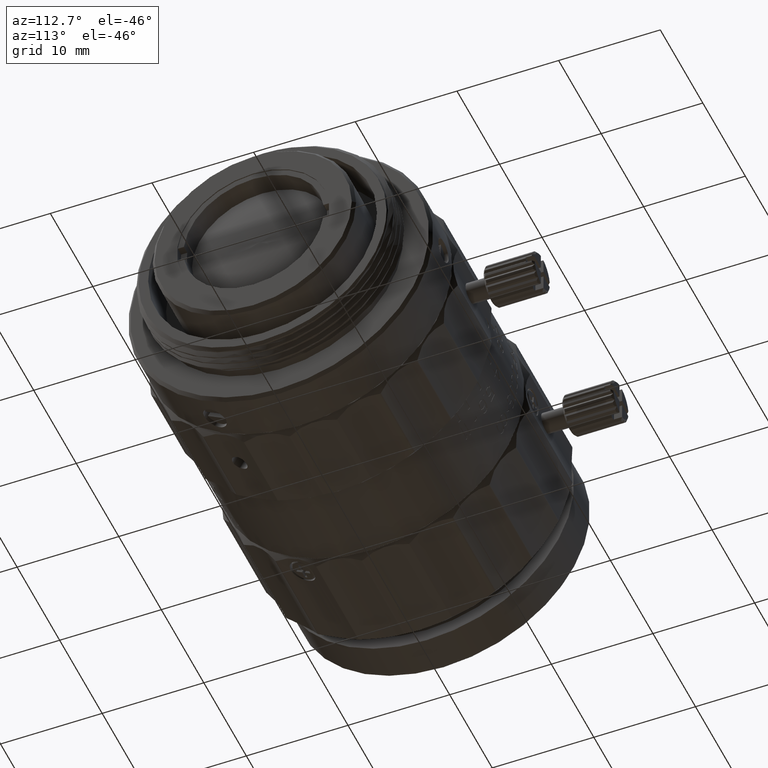
[diagram: clean part render]
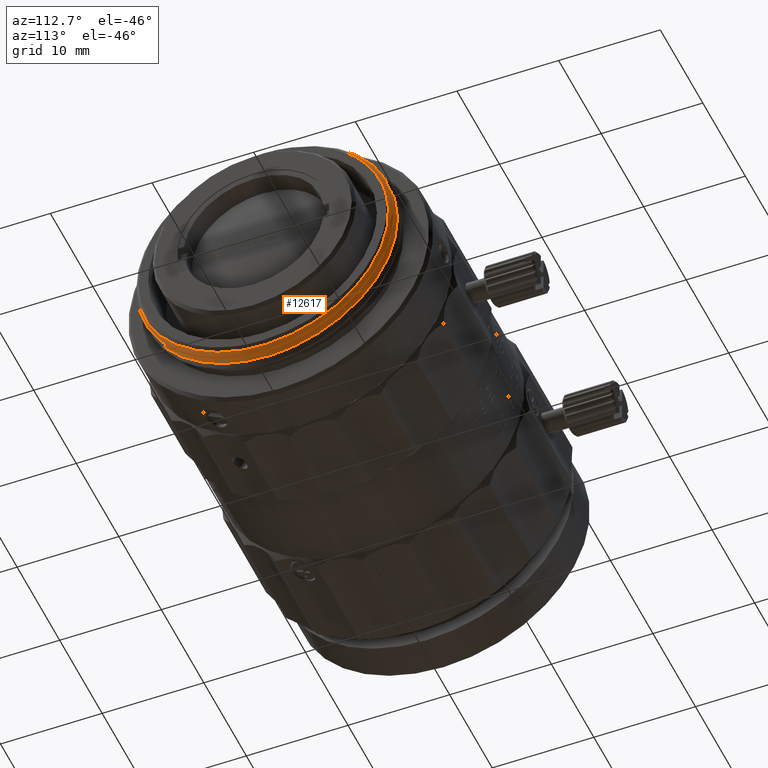
[diagram: same view with one face highlighted and labeled with its STEP entity id]
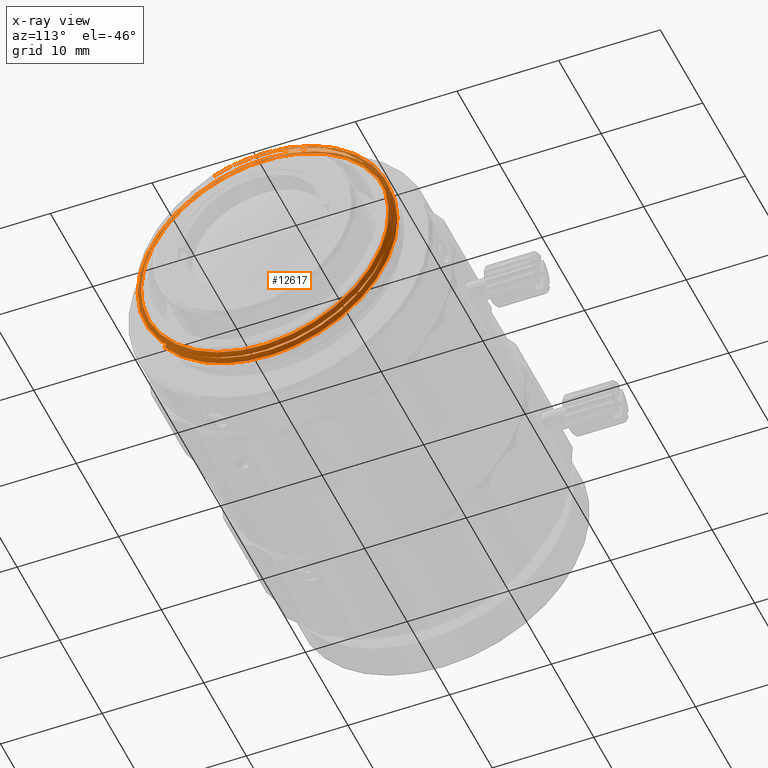
[diagram: x-ray of the same camera — body ghosted, the highlighted face saturated]
A machine part, auxiliary view. The second image highlights one B-rep face of the part: STEP entity #12617.
The next image is the same camera in x-ray: the body ghosted, the highlighted face saturated — about 0% of this face is hidden behind the body in this view.
In plain terms, the highlighted face is a freeform B-spline surface patch.
Its self-contained STEP definition (entity closure, byte-faithful):
#129 = FACE_OUTER_BOUND ( 'NONE', #24247, .T. ) ;
#374 = CARTESIAN_POINT ( 'NONE',  ( 3.499920121065671630, 10.67834939959904439, 6.874715535972438119 ) ) ;
#514 = CARTESIAN_POINT ( 'NONE',  ( 3.594074004484999918, 0.6258875992885000183, 12.99518045017999945 ) ) ;
#871 = CARTESIAN_POINT ( 'NONE',  ( 2.551181842513587927, 10.09816540872513890, -7.747081107326232896 ) ) ;
#911 = CARTESIAN_POINT ( 'NONE',  ( 3.305675875592999358, -8.838412986952999262, -9.059239745680001121 ) ) ;
#1294 = CARTESIAN_POINT ( 'NONE',  ( 3.083650623562999904, -7.261076405747001417, 10.36649112897999991 ) ) ;
#1448 = ORIENTED_EDGE ( 'NONE', *, *, #9508, .F. ) ;
#1623 = ORIENTED_EDGE ( 'NONE', *, *, #77343, .T. ) ;
#1675 = CARTESIAN_POINT ( 'NONE',  ( 3.006059134725999282, 8.908692348276000317, 8.739393632916998556 ) ) ;
#2070 = CARTESIAN_POINT ( 'NONE',  ( 2.728410220314000156, 10.22528464778000235, -7.458614114651001437 ) ) ;
#2256 = ORIENTED_EDGE ( 'NONE', *, *, #23987, .T. ) ;
#2456 = CARTESIAN_POINT ( 'NONE',  ( 2.817220321126999938, 12.62299066924000002, 0.9205843300913999494 ) ) ;
#2719 = CARTESIAN_POINT ( 'NONE',  ( 2.914980005793117002, -7.747048309159103141, 10.09816528434425642 ) ) ;
#2856 = CARTESIAN_POINT ( 'NONE',  ( 3.894160142847000738, 0.6003628963610001534, 12.46521609147999854 ) ) ;
#3105 = VERTEX_POINT ( 'NONE', #60230 ) ;
#3241 = CARTESIAN_POINT ( 'NONE',  ( 3.849755092441000226, 4.855521360994998759, 11.49633087462999903 ) ) ;
#3490 = CARTESIAN_POINT ( 'NONE',  ( 2.832365805679381232, -5.481869355772847566E-07, 12.69994713462105551 ) ) ;
#3862 = CARTESIAN_POINT ( 'NONE',  ( 2.848841635790761995, -1.662475917197266728, 12.61785663759387788 ) ) ;
#4270 = EDGE_CURVE ( 'NONE', #41549, #13470, #61631, .T. ) ;
#4386 = CARTESIAN_POINT ( 'NONE',  ( 3.272489437161999692, -12.07050792000999806, 3.169327844188000398 ) ) ;
#4870 = CARTESIAN_POINT ( 'NONE',  ( 2.628381507527000949, 10.36817057748999815, -7.562839185038000345 ) ) ;
#4921 = CARTESIAN_POINT ( 'NONE',  ( 3.424087818356309043, -5.125281698516999107, -11.42907328469000205 ) ) ;
#5337 = CARTESIAN_POINT ( 'NONE',  ( 2.766167935663720101, 6.396154381621151686, 11.09766435917640237 ) ) ;
#5637 = CARTESIAN_POINT ( 'NONE',  ( 3.016808349205999384, -12.95190103295000128, -1.230626257699999559 ) ) ;
#5999 = CARTESIAN_POINT ( 'NONE',  ( 2.493286327985411610, 5.627925405597366648, -11.41483656382798273 ) ) ;
#6037 = CARTESIAN_POINT ( 'NONE',  ( 3.250052213211999774, -5.251191849731999817, -11.70984543143999979 ) ) ;
#6272 = CARTESIAN_POINT ( 'NONE',  ( 3.229226628278662581, 7.406294098501877302E-07, -12.70002112693937768 ) ) ;
#6418 = CARTESIAN_POINT ( 'NONE',  ( 2.528352794739999965, 10.51105650720000106, -7.667064255420998897 ) ) ;
#6470 = CARTESIAN_POINT ( 'NONE',  ( 3.903434925210822026, -2.850854877072126481, 12.06798329000042713 ) ) ;
#6776 = VERTEX_POINT ( 'NONE', #37277 ) ;
#6804 = CARTESIAN_POINT ( 'NONE',  ( 2.994840522750999767, 1.162578224045000219, 12.60300681463999872 ) ) ;
#7209 = CARTESIAN_POINT ( 'NONE',  ( 3.768111134616000335, -6.488769004407001439, 10.86812582633000090 ) ) ;
#7587 = CARTESIAN_POINT ( 'NONE',  ( 2.872843983507998633, 11.99810628118999922, -3.433255854654999606 ) ) ;
#7889 = CARTESIAN_POINT ( 'NONE',  ( 3.820201304255182340, -0.9064769629970980125, 12.37952081774112223 ) ) ;
#7964 = CARTESIAN_POINT ( 'NONE',  ( 2.950435472344999699, 5.430821293696001639, 11.43212792856999904 ) ) ;
#8357 = CARTESIAN_POINT ( 'NONE',  ( 3.738507767678000526, -3.833956824848999467, 12.24727524740000284 ) ) ;
#9199 = CARTESIAN_POINT ( 'NONE',  ( 3.599346555447423768, 7.811275569978685773, 9.943187870218276103 ) ) ;
#9380 = CARTESIAN_POINT ( 'NONE',  ( 3.014187560796663945, -12.61790235569561247, 1.662481394232477205 ) ) ;
#9508 = EDGE_CURVE ( 'NONE', #61630, #23092, #20789, .T. ) ;
#10356 = CARTESIAN_POINT ( 'NONE',  ( 3.499920121065671630, 10.67834939959904439, 6.874715535972438119 ) ) ;
#11105 = CARTESIAN_POINT ( 'NONE',  ( 2.501557115775149498, 6.364807100371785431, -11.02162101021754559 ) ) ;
#11140 = CARTESIAN_POINT ( 'NONE',  ( 3.028026961182000321, -10.53152036429000127, 7.333660388116000739 ) ) ;
#11191 = CARTESIAN_POINT ( 'NONE',  ( 3.734923171198315295, 11.17788142564999987, 5.652184372775997723 ) ) ;
#11225 = CARTESIAN_POINT ( 'NONE',  ( 2.700028828037409401, 11.09761621215907468, 6.396089811305079920 ) ) ;
#11572 = CARTESIAN_POINT ( 'NONE',  ( 3.868138322416315056, 0.6025761866696999203, 12.51117020054000228 ) ) ;
#11742 = CARTESIAN_POINT ( 'NONE',  ( 3.096865998190906133, -11.09770758432696347, -6.396188551896021757 ) ) ;
#11759 = CARTESIAN_POINT ( 'NONE',  ( 3.274268466349609774, 4.454732122564948327, -11.94741837330285072 ) ) ;
#11910 = CARTESIAN_POINT ( 'NONE',  ( 2.806001709150999890, 9.161197099238000519, 8.987099842366001567 ) ) ;
#12137 = CARTESIAN_POINT ( 'NONE',  ( 3.113401959414153541, -10.15572149977386296, -7.804854521194688921 ) ) ;
#12160 = CARTESIAN_POINT ( 'NONE',  ( 3.420891496060697534, 12.73239548779208796, -0.6720906469325046428 ) ) ;
#12312 = CARTESIAN_POINT ( 'NONE',  ( 3.505263903672999337, 8.879032341570001208, 9.509416148463001761 ) ) ;
#12526 = CARTESIAN_POINT ( 'NONE',  ( 3.146473881860642141, -7.805107183148515482, -10.15601459116854777 ) ) ;
#12617 = ADVANCED_FACE ( 'NONE', ( #129 ), #36558, .F. ) ;
#12647 = CARTESIAN_POINT ( 'NONE',  ( 2.435470190763899812, 7.533926701922852099E-07, -12.69993773890490729 ) ) ;
#12685 = CARTESIAN_POINT ( 'NONE',  ( 2.583976457121000436, 7.130270709967000187, -10.67027309046999939 ) ) ;
#13069 = CARTESIAN_POINT ( 'NONE',  ( 3.472077465242000116, 12.48111423161000211, -2.986182020111999957 ) ) ;
#13302 = CARTESIAN_POINT ( 'NONE',  ( 3.047258114520589700, -12.70048416394289248, -1.662449368423239981 ) ) ;
#13456 = CARTESIAN_POINT ( 'NONE',  ( 3.216865774780999665, -12.59976812997999751, -1.197168312392999923 ) ) ;
#13470 = VERTEX_POINT ( 'NONE', #19418 ) ;
#13835 = CARTESIAN_POINT ( 'NONE',  ( 2.639600119501999576, 2.978805887559999643, -12.30098013393999778 ) ) ;
#14227 = CARTESIAN_POINT ( 'NONE',  ( 2.695223781883000047, -1.418563793616999691, -12.39876558491000047 ) ) ;
#14240 = ORIENTED_EDGE ( 'NONE', *, *, #26249, .T. ) ;
#14615 = CARTESIAN_POINT ( 'NONE',  ( 3.583324790004000615, 7.382036819756999435, -10.06217336481000402 ) ) ;
#14850 = ORIENTED_EDGE ( 'NONE', *, *, #54860, .F. ) ;
#16031 = CARTESIAN_POINT ( 'NONE',  ( 2.425364221640802675, -1.007692532243900541, -12.70017201971780985 ) ) ;
#16669 = CARTESIAN_POINT ( 'NONE',  ( 2.713607011859314522, 2.948008867842999869, -12.17380382838999608 ) ) ;
#16969 = CARTESIAN_POINT ( 'NONE',  ( 2.575994205882810917, 11.41477632498595440, -5.627845618801777583 ) ) ;
#17006 = CARTESIAN_POINT ( 'NONE',  ( 3.205647162806000150, -8.961919070204000803, -9.185831614555000968 ) ) ;
#17093 = CARTESIAN_POINT ( 'NONE',  ( 2.666959274224229404, 12.36914401781164408, 3.324172933653122719 ) ) ;
#17112 = CARTESIAN_POINT ( 'NONE',  ( 2.563196402301346932, -9.995442160362960848, -7.115963252223607149 ) ) ;
#17392 = CARTESIAN_POINT ( 'NONE',  ( 3.194428550831000191, -0.9106911786713999257, -12.97832126789000107 ) ) ;
#17443 = CARTESIAN_POINT ( 'NONE',  ( 2.935632263889315308, 11.41496164798999935, 5.156634485033000814 ) ) ;
#17780 = CARTESIAN_POINT ( 'NONE',  ( 3.682884105297000055, -7.762566049742999574, 10.10838112043999715 ) ) ;
#17851 = CARTESIAN_POINT ( 'NONE',  ( 2.315060934631746115, -10.34590657212173070, -7.365467494087316602 ) ) ;
#18024 = CARTESIAN_POINT ( 'NONE',  ( 3.387055412281194666, 12.10118778413796292, -4.018016327621149131 ) ) ;
#18171 = CARTESIAN_POINT ( 'NONE',  ( 2.883593197988000068, -7.464005847539998406, 10.65620936643999883 ) ) ;
#18218 = CARTESIAN_POINT ( 'NONE',  ( 3.290872667138236451, -12.46950274103999945, -1.184791132570000016 ) ) ;
#18239 = CARTESIAN_POINT ( 'NONE',  ( 2.355178078925437291, -7.555925627878258055, -10.25690014079980017 ) ) ;
#18554 = CARTESIAN_POINT ( 'NONE',  ( 2.376752888558999466, -10.99092736363999911, -6.278518762947999932 ) ) ;
#18794 = CARTESIAN_POINT ( 'NONE',  ( 3.488563663619748567, 11.29242556615274751, 5.921467119007203905 ) ) ;
#18932 = CARTESIAN_POINT ( 'NONE',  ( 3.794131430060000199, 0.6088711306551000124, 12.64187087772000062 ) ) ;
#19267 = CARTESIAN_POINT ( 'NONE',  ( 3.022454857046958931, -12.69963572158131626, 0.8312133337231063512 ) ) ;
#19317 = CARTESIAN_POINT ( 'NONE',  ( 2.476781601347000539, -10.83945909226000204, -6.191993181223002018 ) ) ;
#19418 = CARTESIAN_POINT ( 'NONE',  ( 2.435470190763899812, 7.533926701922852099E-07, -12.69993773890490729 ) ) ;
#19711 = CARTESIAN_POINT ( 'NONE',  ( 3.649697666866000390, 4.993144500770999805, 11.82217871524000330 ) ) ;
#19984 = ORIENTED_EDGE ( 'NONE', *, *, #74203, .T. ) ;
#20020 = CARTESIAN_POINT ( 'NONE',  ( 3.907586721608291569, -4.407829318221266668, 11.50982005769840555 ) ) ;
#20097 = CARTESIAN_POINT ( 'NONE',  ( 2.576810314133999302, -10.68799082088999874, -6.105467599497999664 ) ) ;
#20365 = EDGE_CURVE ( 'NONE', #70598, #30323, #50492, .T. ) ;
#20488 = CARTESIAN_POINT ( 'NONE',  ( 3.039245573156999392, -3.247833219423000184, 12.23269995856999692 ) ) ;
#20789 = B_SPLINE_CURVE_WITH_KNOTS ( 'NONE', 3,
 ( #59744, #29600, #64430, #46833, #52705, #16669, #53862, #65201, #40570, #47985, #17443, #53083, #65982, #58590, #36235, #71867, #59346, #53482, #18218, #76582, #47224, #4921, #58967, #42126, #23347, #64823, #41341, #60124, #11191, #28815, #76979, #11572, #6470, #35083, #29202 ),
 .UNSPECIFIED., .F., .F.,
 ( 4, 1, 1, 1, 1, 1, 1, 1, 1, 1, 1, 1, 1, 1, 1, 1, 1, 1, 1, 1, 1, 1, 1, 1, 1, 1, 1, 1, 1, 1, 1, 1, 4 ),
 ( 0.000000000000000000, 0.01250060074713037032, 0.04500056069306159617, 0.07750052063897922006, 0.1100004805849119360, 0.1425004405308446520, 0.1750004004768075938, 0.2075003604227101117, 0.2400003203686126574, 0.2725002803145151753, 0.3050002402604176654, 0.3375002002064711459, 0.3700001601523736916, 0.4025001200982764038, 0.4350000800441788384, 0.4675000399900813286, 0.4999999999359837632, 0.5324999598820373548, 0.5649999198279397339, 0.5974998797738423351, 0.6299998397197449362, 0.6624997996656474264, 0.6949997596115499165, 0.7274997195574527398, 0.7599996795035059982, 0.7924996394494085994, 0.8249995993953110895, 0.8574995593412134687, 0.8899995192871160699, 0.9224994792330186710, 0.9549994391790721515, 0.9874993991249748637, 1.000000000000000000 ),
 .UNSPECIFIED. ) ;
#21908 = CARTESIAN_POINT ( 'NONE',  ( 2.365204670742010684, -6.715804803448031102, -10.82627851202315306 ) ) ;
#22426 = CARTESIAN_POINT ( 'NONE',  ( 3.938565193252999475, -3.728283701295000530, 11.90971071813000215 ) ) ;
#22895 = CARTESIAN_POINT ( 'NONE',  ( 3.161242112399999638, -11.57671877923999837, -5.538508660097999581 ) ) ;
#23092 = VERTEX_POINT ( 'NONE', #26808 ) ;
#23289 = CARTESIAN_POINT ( 'NONE',  ( 2.495166356308999855, -1.458771052261999657, -12.75019170827000181 ) ) ;
#23347 = CARTESIAN_POINT ( 'NONE',  ( 3.557302969574315021, 7.409251343965999936, -10.09926844673999824 ) ) ;
#23381 = CARTESIAN_POINT ( 'NONE',  ( 2.832365805679381232, -5.481869355772847566E-07, 12.69994713462105551 ) ) ;
#23679 = CARTESIAN_POINT ( 'NONE',  ( 2.705972996364000238, 9.287449474715000264, 9.110952947095000809 ) ) ;
#23954 = ORIENTED_EDGE ( 'NONE', *, *, #46767, .T. ) ;
#23987 = EDGE_CURVE ( 'NONE', #13470, #40694, #24690, .T. ) ;
#24065 = CARTESIAN_POINT ( 'NONE',  ( 3.061213399612999542, -11.73625996476999944, -5.614836007648998262 ) ) ;
#24247 = EDGE_LOOP ( 'NONE', ( #23954, #41788, #14240, #19984, #1448, #14850, #37463, #2256, #46158, #1623 ) ) ;
#24462 = CARTESIAN_POINT ( 'NONE',  ( 2.794783097176000375, 1.195069460461000377, 12.95523023097000070 ) ) ;
#24690 = B_SPLINE_CURVE_WITH_KNOTS ( 'NONE', 3,
 ( #12647, #65894, #41254, #34999, #35378, #5999, #11105, #29898, #77281, #30673, #871, #54159, #16969, #60034, #24821, #35763 ),
 .UNSPECIFIED., .F., .F.,
 ( 4, 2, 2, 2, 2, 2, 2, 4 ),
 ( 0.3773911714351190216, 0.4552172750057291717, 0.5330433785763393217, 0.6108694821469494718, 0.6886955857175596218, 0.7665216892881696609, 0.8443477928587799219, 1.000000000000000000 ),
 .UNSPECIFIED. ) ;
#24782 = CARTESIAN_POINT ( 'NONE',  ( 3.885740367270064333, -3.559025334353272285, 11.82336564680453783 ) ) ;
#24821 = CARTESIAN_POINT ( 'NONE',  ( 2.617348144831543433, 12.69935620417052924, -1.662381542504945076 ) ) ;
#24860 = CARTESIAN_POINT ( 'NONE',  ( 2.595195069095999951, -1.438667422938999962, -12.57447864659000203 ) ) ;
#25155 = CARTESIAN_POINT ( 'NONE',  ( 3.842047658593495729, -1.808179766744848482, 12.25769402240141126 ) ) ;
#25234 = CARTESIAN_POINT ( 'NONE',  ( 3.438891026811000007, 3.515299027101999929, -12.15853780861999844 ) ) ;
#25611 = CARTESIAN_POINT ( 'NONE',  ( 3.094869235537999419, 1.146332605845000074, 12.42689510646999906 ) ) ;
#26009 = CARTESIAN_POINT ( 'NONE',  ( 3.350080925998999426, -5.178824075284999218, -11.54846959965000153 ) ) ;
#26249 = EDGE_CURVE ( 'NONE', #30323, #6776, #40248, .T. ) ;
#26386 = CARTESIAN_POINT ( 'NONE',  ( 3.605292616459999877, 8.758331935275998958, 9.380146387000001695 ) ) ;
#26635 = CARTESIAN_POINT ( 'NONE',  ( 2.939781894544010399, -9.567826241104464557, 8.392258675379371979 ) ) ;
#26808 = CARTESIAN_POINT ( 'NONE',  ( 3.929577180397755054, -5.210473861641952809, 11.10890108369821938 ) ) ;
#27223 = CARTESIAN_POINT ( 'NONE',  ( 3.698850752682177223, 4.095365483349481472, 11.85662430892758401 ) ) ;
#27243 = B_SPLINE_CURVE_WITH_KNOTS ( 'NONE', 3,
 ( #66930, #13302, #65370, #11742, #12137, #12526, #35636, #30548, #77534, #59518 ),
 .UNSPECIFIED., .F., .F.,
 ( 4, 2, 2, 2, 4 ),
 ( 0.000000000000000000, 0.1057466362565430279, 0.2114932725130860558, 0.3172399087696290976, 0.4229865450261722226 ),
 .UNSPECIFIED. ) ;
#27388 = CARTESIAN_POINT ( 'NONE',  ( 2.989385672045790976, -12.05131355262288295, 4.092077612518220775 ) ) ;
#27519 = CARTESIAN_POINT ( 'NONE',  ( 3.805350042035000158, 8.516931122657998898, 9.121606864102000500 ) ) ;
#27593 = CARTESIAN_POINT ( 'NONE',  ( 3.549594456830157174, 9.384168981621076711, 8.548552796779546270 ) ) ;
#28763 = CARTESIAN_POINT ( 'NONE',  ( 2.939216860369999740, -3.293217742685000893, 12.40363707833999740 ) ) ;
#28815 = CARTESIAN_POINT ( 'NONE',  ( 3.779328221604315807, 8.548329533943999081, 9.155234465385001741 ) ) ;
#29154 = CARTESIAN_POINT ( 'NONE',  ( 2.750378046770000751, 5.582599552473999971, 11.75162812516999900 ) ) ;
#29202 = CARTESIAN_POINT ( 'NONE',  ( 3.929577180397755054, -5.210473861641952809, 11.10890108369821938 ) ) ;
#29239 = CARTESIAN_POINT ( 'NONE',  ( 2.799237489476950280, 3.324088892183993948, 12.36898960827711136 ) ) ;
#29549 = CARTESIAN_POINT ( 'NONE',  ( 3.238833601237000259, 3.613543093036999831, -12.49833939626999957 ) ) ;
#29600 = CARTESIAN_POINT ( 'NONE',  ( 2.569005389043149012, -9.675007684898838889, -7.566641647048953701 ) ) ;
#29898 = CARTESIAN_POINT ( 'NONE',  ( 2.518098691354627494, 7.746957683125640592, -10.09808542937439313 ) ) ;
#29937 = CARTESIAN_POINT ( 'NONE',  ( 2.717191608339000641, 12.79938162749999897, 0.9334483776318001080 ) ) ;
#30323 = VERTEX_POINT ( 'NONE', #51659 ) ;
#30324 = CARTESIAN_POINT ( 'NONE',  ( 2.972403298799999760, -12.58369108041999951, 3.304073265870000498 ) ) ;
#30548 = CARTESIAN_POINT ( 'NONE',  ( 3.196081765530413676, -3.324205480488584552, -12.36925092041301788 ) ) ;
#30673 = CARTESIAN_POINT ( 'NONE',  ( 2.542911054723846487, 9.567908808527727516, -8.392319930280608631 ) ) ;
#30712 = CARTESIAN_POINT ( 'NONE',  ( 3.172460724375000041, -12.24156897347999973, 3.214242984741999543 ) ) ;
#30966 = CARTESIAN_POINT ( 'NONE',  ( 3.341940633908559111, 9.928744608990374587, -7.999282715763108342 ) ) ;
#31107 = CARTESIAN_POINT ( 'NONE',  ( 3.516482515647999296, 12.74614339413000330, 1.493762443957999952 ) ) ;
#31405 = CARTESIAN_POINT ( 'NONE',  ( 3.798445004238084177, -4.609643563227500804E-06, 12.40156145815530664 ) ) ;
#31487 = CARTESIAN_POINT ( 'NONE',  ( 2.917249033913999146, 12.44659971099000018, 0.9077202825444001810 ) ) ;
#31864 = CARTESIAN_POINT ( 'NONE',  ( 2.606413681070999910, -9.098215792253999012, -8.541883758542999416 ) ) ;
#32254 = CARTESIAN_POINT ( 'NONE',  ( 2.550790018690000327, -5.680200610228999913, -11.31030257641999626 ) ) ;
#32886 = CARTESIAN_POINT ( 'NONE',  ( 2.865376228291341310, -3.293016945967306430, 12.29410889298206122 ) ) ;
#33095 = CARTESIAN_POINT ( 'NONE',  ( 3.748602851299539296, 2.070468204418542513, 12.32138432074456347 ) ) ;
#33671 = B_SPLINE_CURVE_WITH_KNOTS ( 'NONE', 3,
 ( #3490, #50899, #3862, #32886, #75126, #57154, #39524, #2719, #45776, #26635, #56377, #37314, #43174, #27388, #67047, #9380, #19267, #34037 ),
 .UNSPECIFIED., .F., .F.,
 ( 4, 2, 2, 2, 2, 2, 2, 2, 4 ),
 ( 0.5000027881692094001, 0.5625024396480582389, 0.6250020911269069668, 0.6875017426057558056, 0.7500013940846046445, 0.8125010455634534834, 0.8750006970423023223, 0.9375003485211511611, 1.000000000000000000 ),
 .UNSPECIFIED. ) ;
#33676 = CARTESIAN_POINT ( 'NONE',  ( 2.325098303475886752, -9.761621726141314070, -8.186472581256778014 ) ) ;
#34037 = CARTESIAN_POINT ( 'NONE',  ( 3.030792110863641309, -12.69995960895547782, -7.095767216844504743E-07 ) ) ;
#34253 = CARTESIAN_POINT ( 'NONE',  ( 3.624222604756090149, 6.939191885339516475, 10.53920667321620641 ) ) ;
#34646 = CARTESIAN_POINT ( 'NONE',  ( 3.798445004238084177, -4.609643563227500804E-06, 12.40156145815530664 ) ) ;
#34999 = CARTESIAN_POINT ( 'NONE',  ( 2.468473964616194394, 3.293004062732388881, -12.29420554401872501 ) ) ;
#35032 = CARTESIAN_POINT ( 'NONE',  ( 3.294457263617999843, -0.8983113617040001664, -12.80189566318000338 ) ) ;
#35083 = CARTESIAN_POINT ( 'NONE',  ( 3.923929844536957479, -4.709778870776857751, 11.34362475191376163 ) ) ;
#35111 = CARTESIAN_POINT ( 'NONE',  ( 2.749633158757156082, 7.804846811878267232, 10.15570806982125873 ) ) ;
#35378 = CARTESIAN_POINT ( 'NONE',  ( 2.476744752405934946, 4.092046985725005470, -12.05122420332794775 ) ) ;
#35636 = CARTESIAN_POINT ( 'NONE',  ( 3.163009843083898875, -6.396111707461453300, -11.09766450333387056 ) ) ;
#35653 = CARTESIAN_POINT ( 'NONE',  ( 3.308104550129085997, 7.457937059292897963, -10.34227573393673971 ) ) ;
#35763 = CARTESIAN_POINT ( 'NONE',  ( 2.633938394420521689, 12.69997189755208566, 4.942650281020058036E-07 ) ) ;
#35801 = CARTESIAN_POINT ( 'NONE',  ( 2.850406759556999958, 5.506710423091000450, 11.59187802687000257 ) ) ;
#36183 = CARTESIAN_POINT ( 'NONE',  ( 3.283238651643000328, 7.695887488702999768, -10.48997126382000111 ) ) ;
#36235 = CARTESIAN_POINT ( 'NONE',  ( 3.113252465513883127, -3.214254803279999795, 12.10622958217000011 ) ) ;
#36255 = CARTESIAN_POINT ( 'NONE',  ( 2.385257854375046005, -4.924752474691817206, -11.74999231962568125 ) ) ;
#36558 = B_SPLINE_SURFACE_WITH_KNOTS ( 'NONE', 3, 3, ( 
 ( #47935, #46780, #71816, #65931, #42459, #65146, #71051, #6418, #77319, #54194, #53034, #23679, #29154, #24462, #40913, #18171, #59298, #30324, #5637, #24065, #53430, #76923, #17392, #29549, #36183, #42075, #47548, #70659, #71425, #12312, #60074, #514, #48322, #72207, #17780 ),
 ( #41677, #18554, #66317, #53813, #23289, #47171, #12685, #4870, #64769, #29937, #65537, #11910, #35801, #58536, #28763, #52657, #11140, #59694, #76530, #22895, #17006, #6037, #35032, #60841, #68259, #36572, #13069, #31107, #73346, #26386, #19711, #56125, #8357, #7209, #50255 ),
 ( #61598, #19317, #48711, #32254, #24860, #13835, #36965, #2070, #66707, #2456, #74119, #60458, #7964, #6804, #20488, #1294, #54967, #30712, #13456, #43222, #911, #26009, #49476, #25234, #72579, #44373, #73729, #49091, #37741, #54587, #72957, #18932, #42841, #67094, #37357 ),
 ( #49867, #20097, #31864, #61214, #14227, #43995, #55737, #67862, #7587, #31487, #55339, #1675, #38117, #25611, #61984, #43602, #67477, #4386, #38524, #63529, #62370, #58062, #56905, #68652, #14615, #69029, #74889, #56515, #57673, #27519, #3241, #2856, #22426, #51804, #62757 ) ),
 .UNSPECIFIED., .F., .F., .F.,
 ( 4, 4 ),
 ( 4, 1, 1, 1, 1, 1, 1, 1, 1, 1, 1, 1, 1, 1, 1, 1, 1, 1, 1, 1, 1, 1, 1, 1, 1, 1, 1, 1, 1, 1, 1, 1, 4 ),
 ( -0.09284549768189999386, 1.103759664633000126 ),
 ( -0.01324884999913000100, 0.008280531249490999737, 0.02980991249811000901, 0.05133929374672000640, 0.07286867499534001313, 0.09439805624394999317, 0.1159274374926000245, 0.1374568187411999987, 0.1589861999898000144, 0.1805155812384000025, 0.2020449624869999627, 0.2235743437355999785, 0.2451037249842999977, 0.2666331062329000967, 0.2881624874815000292, 0.3096918687301000173, 0.3312212499786999498, 0.3527506312273000488, 0.3742800124759999569, 0.3958093937246000005, 0.4173387749732000440, 0.4388681562217999765, 0.4603975374703999646, 0.4819269187190001746, 0.5034562999677000272, 0.5249856812163000708, 0.5465150624649000033, 0.5680444437134999358, 0.5895738249620999794, 0.6111032062107000229, 0.6326325874593999865, 0.6541619687080001411, 0.6756913499566000736 ),
 .UNSPECIFIED. ) ;
#36572 = CARTESIAN_POINT ( 'NONE',  ( 3.427672414836000048, 10.68980532449000087, -7.100954727678999490 ) ) ;
#36746 = CARTESIAN_POINT ( 'NONE',  ( 2.480302396876826077, -10.11249052245327817, -7.199295341009594118 ) ) ;
#36965 = CARTESIAN_POINT ( 'NONE',  ( 2.684005169907999644, 7.032006956313999524, -10.52322382276999768 ) ) ;
#37020 = B_SPLINE_CURVE_WITH_KNOTS ( 'NONE', 3,
 ( #31405, #7889, #25155, #24782, #20020, #67010 ),
 .UNSPECIFIED., .F., .F.,
 ( 4, 2, 4 ),
 ( 0.6948767265704215434, 0.8474383632852107162, 1.000000000000000000 ),
 .UNSPECIFIED. ) ;
#37219 = CARTESIAN_POINT ( 'NONE',  ( 3.477284969026571471, 11.77727997565624740, 4.885392639424929406 ) ) ;
#37277 = CARTESIAN_POINT ( 'NONE',  ( 3.798445004238084177, -4.609643563227500804E-06, 12.40156145815530664 ) ) ;
#37314 = CARTESIAN_POINT ( 'NONE',  ( 2.964583783294902464, -11.02146737304042645, 6.364725679591086482 ) ) ;
#37357 = CARTESIAN_POINT ( 'NONE',  ( 3.882941530871999891, -7.551519431154000372, 9.833557094264001819 ) ) ;
#37463 = ORIENTED_EDGE ( 'NONE', *, *, #4270, .T. ) ;
#37741 = CARTESIAN_POINT ( 'NONE',  ( 3.660916278841000793, 11.29465360989000011, 5.711231153632001067 ) ) ;
#38117 = CARTESIAN_POINT ( 'NONE',  ( 3.050464185131999795, 5.354932164312999454, 11.27237783026999907 ) ) ;
#38524 = CARTESIAN_POINT ( 'NONE',  ( 3.316894487567999317, -12.42370167848999962, -1.180439339727000103 ) ) ;
#39524 = CARTESIAN_POINT ( 'NONE',  ( 2.898445413292522144, -6.364710818336834386, 11.02143597150605636 ) ) ;
#39895 = B_SPLINE_CURVE_WITH_KNOTS ( 'NONE', 3,
 ( #70751, #75847, #17093, #11225, #75446, #35111, #5337, #29239, #77014, #23381 ),
 .UNSPECIFIED., .F., .F.,
 ( 4, 2, 2, 2, 4 ),
 ( 0.000000000000000000, 0.1250006970423024055, 0.2500013940846048111, 0.3750020911269071333, 0.5000027881692094001 ),
 .UNSPECIFIED. ) ;
#40248 = B_SPLINE_CURVE_WITH_KNOTS ( 'NONE', 3,
 ( #10356, #69880, #27593, #9199, #34253, #57745, #27223, #33095, #76130, #34646 ),
 .UNSPECIFIED., .F., .F.,
 ( 4, 2, 2, 2, 4 ),
 ( 0.000000000000000000, 0.1737191816426054691, 0.3474383632852108272, 0.5211575449278161853, 0.6948767265704215434 ),
 .UNSPECIFIED. ) ;
#40570 = CARTESIAN_POINT ( 'NONE',  ( 2.846822163077315171, 12.04233834909000223, -3.445912852559999795 ) ) ;
#40694 = VERTEX_POINT ( 'NONE', #73762 ) ;
#40913 = CARTESIAN_POINT ( 'NONE',  ( 2.839188147581999999, -3.338602265962999471, 12.57457419810000410 ) ) ;
#41254 = CARTESIAN_POINT ( 'NONE',  ( 2.451932389036712845, 1.662510441491255042, -12.61805010011653927 ) ) ;
#41341 = CARTESIAN_POINT ( 'NONE',  ( 3.646113070386314714, 12.18184903146000053, -2.914581012082000822 ) ) ;
#41530 = CARTESIAN_POINT ( 'NONE',  ( 3.319383244722243997, 8.354504854234784617, -9.631837165892918051 ) ) ;
#41549 = VERTEX_POINT ( 'NONE', #71967 ) ;
#41677 = CARTESIAN_POINT ( 'NONE',  ( 2.361951205091000539, -11.56776098401000041, -4.923152880580000890 ) ) ;
#41788 = ORIENTED_EDGE ( 'NONE', *, *, #20365, .T. ) ;
#42075 = CARTESIAN_POINT ( 'NONE',  ( 3.327643702048999952, 10.83712376999999805, -7.198814471637999368 ) ) ;
#42126 = CARTESIAN_POINT ( 'NONE',  ( 3.512897919168314953, 3.478955358683999854, -12.03283417341999773 ) ) ;
#42459 = CARTESIAN_POINT ( 'NONE',  ( 2.395137643522000204, -1.478874681582999839, -12.92590476996000248 ) ) ;
#42624 = CARTESIAN_POINT ( 'NONE',  ( 2.315060934631746115, -10.34590657212173070, -7.365467494087316602 ) ) ;
#42703 = CARTESIAN_POINT ( 'NONE',  ( 3.375776717688034001, 11.69161990000690921, -5.086352966167119405 ) ) ;
#42841 = CARTESIAN_POINT ( 'NONE',  ( 3.838536480465999823, -3.781120263093000311, 12.07849298275999672 ) ) ;
#43079 = CARTESIAN_POINT ( 'NONE',  ( 3.353219328501717111, 10.60627898272630887, -7.077571607773621487 ) ) ;
#43174 = CARTESIAN_POINT ( 'NONE',  ( 2.972851079545199671, -11.41479722719098255, 5.627884073451125069 ) ) ;
#43222 = CARTESIAN_POINT ( 'NONE',  ( 3.261270825187000177, -11.41717759369999996, -5.462181312569999392 ) ) ;
#43602 = CARTESIAN_POINT ( 'NONE',  ( 3.183679336350000000, -7.159611684844001900, 10.22163201026000046 ) ) ;
#43995 = CARTESIAN_POINT ( 'NONE',  ( 2.739628832289000115, 2.937180694391000380, -12.12908888168999866 ) ) ;
#44373 = CARTESIAN_POINT ( 'NONE',  ( 3.527701127623000144, 10.54248687900999926, -7.003094983688000319 ) ) ;
#45776 = CARTESIAN_POINT ( 'NONE',  ( 2.923247302043415097, -8.392265370784677714, 9.567832447501471549 ) ) ;
#46158 = ORIENTED_EDGE ( 'NONE', *, *, #56078, .T. ) ;
#46767 = EDGE_CURVE ( 'NONE', #49100, #70598, #27243, .T. ) ;
#46780 = CARTESIAN_POINT ( 'NONE',  ( 2.276724175772000258, -11.14239563502000152, -6.365044344672999621 ) ) ;
#46833 = CARTESIAN_POINT ( 'NONE',  ( 2.624796911047309500, -5.621474645262999559, -11.19336860200000139 ) ) ;
#47171 = CARTESIAN_POINT ( 'NONE',  ( 2.539571406714999924, 3.020431080727000506, -12.47287138620000135 ) ) ;
#47224 = CARTESIAN_POINT ( 'NONE',  ( 3.379682767950309863, -8.747035170036998153, -8.965578864237000900 ) ) ;
#47497 = B_SPLINE_CURVE_WITH_KNOTS ( 'NONE', 3,
 ( #42624, #66873, #36746, #60626 ),
 .UNSPECIFIED., .F., .F.,
 ( 4, 4 ),
 ( 0.000000000000000000, 1.000000000000000000 ),
 .UNSPECIFIED. ) ;
#47548 = CARTESIAN_POINT ( 'NONE',  ( 3.372048752454999576, 12.65311908024999887, -3.027335219799000221 ) ) ;
#47935 = CARTESIAN_POINT ( 'NONE',  ( 2.261922492302999910, -11.72717872030000308, -4.990999881282000672 ) ) ;
#47985 = CARTESIAN_POINT ( 'NONE',  ( 2.891227213483314795, 12.49248518913000083, 0.9110666727361000916 ) ) ;
#48322 = CARTESIAN_POINT ( 'NONE',  ( 3.638479054890999986, -3.886793386647000581, 12.41605751201999830 ) ) ;
#48711 = CARTESIAN_POINT ( 'NONE',  ( 2.506384968284000259, -9.227154059677001641, -8.662937789080002560 ) ) ;
#49091 = CARTESIAN_POINT ( 'NONE',  ( 3.616511228435000280, 12.57048612310999758, 1.473176590973999778 ) ) ;
#49100 = VERTEX_POINT ( 'NONE', #54180 ) ;
#49476 = CARTESIAN_POINT ( 'NONE',  ( 3.394485976404999494, -0.8859315447044000535, -12.62547005847000037 ) ) ;
#49867 = CARTESIAN_POINT ( 'NONE',  ( 2.562008630664999398, -11.24892551145000041, -4.787458879177998838 ) ) ;
#50255 = CARTESIAN_POINT ( 'NONE',  ( 3.782912818085000239, -7.657042740430999750, 9.970969107366000728 ) ) ;
#50492 = B_SPLINE_CURVE_WITH_KNOTS ( 'NONE', 3,
 ( #6272, #71672, #66566, #11759, #54056, #35653, #41530, #30966, #43079, #42703, #18024, #59540, #12160, #60316, #72442, #37219, #18794, #374 ),
 .UNSPECIFIED., .F., .F.,
 ( 4, 2, 2, 2, 2, 2, 2, 2, 4 ),
 ( 0.4229865450261722226, 0.4951132268979006601, 0.5672399087696291531, 0.6393665906413575906, 0.7114932725130860280, 0.7836199543848144655, 0.8557466362565430140, 0.9278733181282714515, 1.000000000000000000 ),
 .UNSPECIFIED. ) ;
#50899 = CARTESIAN_POINT ( 'NONE',  ( 2.840574339540475002, -0.8312111830942269242, 12.69960960856193566 ) ) ;
#51659 = CARTESIAN_POINT ( 'NONE',  ( 3.499920121065671630, 10.67834939959904439, 6.874715535972438119 ) ) ;
#51684 = CARTESIAN_POINT ( 'NONE',  ( 2.435470190763899812, 7.533926701922852099E-07, -12.69993773890490729 ) ) ;
#51804 = CARTESIAN_POINT ( 'NONE',  ( 3.968168560190000527, -6.309922835779000039, 10.56857399096000094 ) ) ;
#52657 = CARTESIAN_POINT ( 'NONE',  ( 2.983621910776000252, -7.362541126635998801, 10.51135024772000115 ) ) ;
#52705 = CARTESIAN_POINT ( 'NONE',  ( 2.669201961453314897, -1.423793453078999516, -12.44447471836000396 ) ) ;
#53034 = CARTESIAN_POINT ( 'NONE',  ( 2.661567945958000614, 11.85656370026999973, 5.356125332359999547 ) ) ;
#53083 = CARTESIAN_POINT ( 'NONE',  ( 2.980037314295314932, 8.941535021575999664, 8.771612171700999383 ) ) ;
#53430 = CARTESIAN_POINT ( 'NONE',  ( 3.105618450018999610, -9.085425153435000567, -9.312423483450999129 ) ) ;
#53482 = CARTESIAN_POINT ( 'NONE',  ( 3.246467616732236383, -12.11500690287999582, 3.181011848404000641 ) ) ;
#53813 = CARTESIAN_POINT ( 'NONE',  ( 2.450761305902999787, -5.759574512577999350, -11.46835031344000200 ) ) ;
#53862 = CARTESIAN_POINT ( 'NONE',  ( 2.758012062265315034, 6.959305053250000483, -10.41442722983999936 ) ) ;
#54056 = CARTESIAN_POINT ( 'NONE',  ( 3.285547160942769551, 5.507432710167824652, -11.49923415982338781 ) ) ;
#54159 = CARTESIAN_POINT ( 'NONE',  ( 2.567723418093069920, 11.02130125763863155, -6.364626644474382644 ) ) ;
#54180 = CARTESIAN_POINT ( 'NONE',  ( 3.030792110863641309, -12.69995960895547782, -7.095767216844504743E-07 ) ) ;
#54194 = CARTESIAN_POINT ( 'NONE',  ( 2.617162895552000101, 12.97577258575999970, 0.9463124251787002894 ) ) ;
#54587 = CARTESIAN_POINT ( 'NONE',  ( 3.705321329247000417, 8.637631528950999282, 9.250876625566002431 ) ) ;
#54860 = EDGE_CURVE ( 'NONE', #41549, #61630, #47497, .T. ) ;
#54967 = CARTESIAN_POINT ( 'NONE',  ( 3.128055673968999972, -10.38638327696999930, 7.232593678705999451 ) ) ;
#55339 = CARTESIAN_POINT ( 'NONE',  ( 2.961654084319999658, 11.37303396384999843, 5.137693927139999950 ) ) ;
#55737 = CARTESIAN_POINT ( 'NONE',  ( 2.784033882696000717, 6.933743202660001437, -10.37617455507000130 ) ) ;
#56078 = EDGE_CURVE ( 'NONE', #40694, #3105, #39895, .T. ) ;
#56125 = CARTESIAN_POINT ( 'NONE',  ( 3.694102717272000458, 0.6173793649934999905, 12.81852566395000181 ) ) ;
#56377 = CARTESIAN_POINT ( 'NONE',  ( 2.948049190794307606, -10.09816600550482235, 7.747041196985064104 ) ) ;
#56515 = CARTESIAN_POINT ( 'NONE',  ( 3.716539941223000021, 12.39482885208999896, 1.452590737949999822 ) ) ;
#56905 = CARTESIAN_POINT ( 'NONE',  ( 3.494514689192000034, -0.8735517277377001788, -12.44904445375999913 ) ) ;
#57154 = CARTESIAN_POINT ( 'NONE',  ( 2.890178117042223604, -5.627875540165647728, 11.41478092614545581 ) ) ;
#57549 = CARTESIAN_POINT ( 'NONE',  ( 2.415337629824378940, -2.015171782143027279, -12.57963699704228766 ) ) ;
#57673 = CARTESIAN_POINT ( 'NONE',  ( 3.760944991629000089, 11.13682454818000167, 5.631423637134000515 ) ) ;
#57745 = CARTESIAN_POINT ( 'NONE',  ( 3.673974703373472206, 5.081554257934288721, 11.49667725374829530 ) ) ;
#58062 = CARTESIAN_POINT ( 'NONE',  ( 3.450109638785999966, -5.106456300866999420, -11.38709376783999971 ) ) ;
#58536 = CARTESIAN_POINT ( 'NONE',  ( 2.894811809963999671, 1.178823842259999921, 12.77911852280999838 ) ) ;
#58590 = CARTESIAN_POINT ( 'NONE',  ( 3.068847415107882171, 1.150558661228000323, 12.47270794185999954 ) ) ;
#58967 = CARTESIAN_POINT ( 'NONE',  ( 3.468492868762314885, -0.8767721525612999223, -12.49493894465999944 ) ) ;
#59298 = CARTESIAN_POINT ( 'NONE',  ( 2.927998248394000580, -10.67665745161999702, 7.434727097510000604 ) ) ;
#59346 = CARTESIAN_POINT ( 'NONE',  ( 3.202062566326236315, -10.27900143919999998, 7.157817967050998043 ) ) ;
#59518 = CARTESIAN_POINT ( 'NONE',  ( 3.229226628278662581, 7.406294098501877302E-07, -12.70002112693937768 ) ) ;
#59540 = CARTESIAN_POINT ( 'NONE',  ( 3.409612801467525767, 12.62149203010098297, -1.810865178376507068 ) ) ;
#59694 = CARTESIAN_POINT ( 'NONE',  ( 3.072432011587999501, -12.41263002694999784, 3.259158125316999666 ) ) ;
#59744 = CARTESIAN_POINT ( 'NONE',  ( 2.563196402301346932, -9.995442160362960848, -7.115963252223607149 ) ) ;
#60034 = CARTESIAN_POINT ( 'NONE',  ( 2.600806569252041456, 12.36971427063298812, -3.324253656390961709 ) ) ;
#60074 = CARTESIAN_POINT ( 'NONE',  ( 3.549668954078999406, 5.061956070639999083, 11.98510263555000499 ) ) ;
#60124 = CARTESIAN_POINT ( 'NONE',  ( 3.690518120792314782, 12.44052347242999979, 1.457945840719999886 ) ) ;
#60230 = CARTESIAN_POINT ( 'NONE',  ( 2.832365805679381232, -5.481869355772847566E-07, 12.69994713462105551 ) ) ;
#60316 = CARTESIAN_POINT ( 'NONE',  ( 3.443448885247046398, 12.65087584879990423, 1.594228782638570596 ) ) ;
#60458 = CARTESIAN_POINT ( 'NONE',  ( 2.906030421938999631, 9.034944723752998286, 8.863246737645004814 ) ) ;
#60626 = CARTESIAN_POINT ( 'NONE',  ( 2.563196402301346932, -9.995442160362960848, -7.115963252223607149 ) ) ;
#60841 = CARTESIAN_POINT ( 'NONE',  ( 3.338862314023999467, 3.564421060053000190, -12.32843860244999945 ) ) ;
#61214 = CARTESIAN_POINT ( 'NONE',  ( 2.650818731476999979, -5.600826707878999500, -11.15225483941000029 ) ) ;
#61598 = CARTESIAN_POINT ( 'NONE',  ( 2.461979917877999746, -11.40834324773000219, -4.855305879878998532 ) ) ;
#61630 = VERTEX_POINT ( 'NONE', #17112 ) ;
#61631 = B_SPLINE_CURVE_WITH_KNOTS ( 'NONE', 3,
 ( #17851, #33676, #66004, #18239, #21908, #36255, #75535, #57549, #16031, #51684 ),
 .UNSPECIFIED., .F., .F.,
 ( 4, 2, 2, 2, 4 ),
 ( 0.000000000000000000, 0.09434779285877975541, 0.1886955857175595108, 0.2830433785763392662, 0.3773911714351190216 ),
 .UNSPECIFIED. ) ;
#61984 = CARTESIAN_POINT ( 'NONE',  ( 3.139274285943999931, -3.202448696144999385, 12.06176283880999911 ) ) ;
#62370 = CARTESIAN_POINT ( 'NONE',  ( 3.405704588380000342, -8.714906903722999587, -8.932647876785003049 ) ) ;
#62757 = CARTESIAN_POINT ( 'NONE',  ( 3.982970243658999987, -7.445996121842000548, 9.696145081188999981 ) ) ;
#63529 = CARTESIAN_POINT ( 'NONE',  ( 3.361299537973999829, -11.25763640815999977, -5.385853965018999823 ) ) ;
#64430 = CARTESIAN_POINT ( 'NONE',  ( 2.589500308311013743, -8.411721391803922643, -9.110792360147975444 ) ) ;
#64769 = CARTESIAN_POINT ( 'NONE',  ( 2.672786557933000129, 12.33817626228999842, -3.530566815758000132 ) ) ;
#64823 = CARTESIAN_POINT ( 'NONE',  ( 3.601708019980315090, 10.43349113086000024, -6.930691993219000757 ) ) ;
#65146 = CARTESIAN_POINT ( 'NONE',  ( 2.439542693927998940, 3.062056273895999770, -12.64476263845000226 ) ) ;
#65201 = CARTESIAN_POINT ( 'NONE',  ( 2.802417112671314658, 10.11956836252999992, -7.381501642532000140 ) ) ;
#65370 = CARTESIAN_POINT ( 'NONE',  ( 3.063794075744087131, -12.36901261920850104, -3.324091355241864942 ) ) ;
#65537 = CARTESIAN_POINT ( 'NONE',  ( 2.761596658745000710, 11.69538712145999959, 5.283314863950999474 ) ) ;
#65894 = CARTESIAN_POINT ( 'NONE',  ( 2.443661601246972293, 0.8312335314393057839, -12.69963086476116487 ) ) ;
#65931 = CARTESIAN_POINT ( 'NONE',  ( 2.350732593115999691, -5.838948414928000652, -11.62639805044999974 ) ) ;
#65982 = CARTESIAN_POINT ( 'NONE',  ( 3.024442364701314556, 5.374673589961001419, 11.31393443677999677 ) ) ;
#66004 = CARTESIAN_POINT ( 'NONE',  ( 2.335124895292362002, -9.079346893119724982, -8.937468688259611937 ) ) ;
#66317 = CARTESIAN_POINT ( 'NONE',  ( 2.406356255497000607, -9.356092327099002404, -8.783991819617000374 ) ) ;
#66566 = CARTESIAN_POINT ( 'NONE',  ( 3.251711077163275565, 2.267865236271894513, -12.54730568868694718 ) ) ;
#66707 = CARTESIAN_POINT ( 'NONE',  ( 2.772815270719999781, 12.16814127173999971, -3.481911335203999869 ) ) ;
#66873 = CARTESIAN_POINT ( 'NONE',  ( 2.397617180860938557, -10.22915250638610196, -7.282349468530097347 ) ) ;
#66930 = CARTESIAN_POINT ( 'NONE',  ( 3.030792110863641309, -12.69995960895547782, -7.095767216844504743E-07 ) ) ;
#67010 = CARTESIAN_POINT ( 'NONE',  ( 3.929577180397755054, -5.210473861641952809, 11.10890108369821938 ) ) ;
#67047 = CARTESIAN_POINT ( 'NONE',  ( 2.997652968296081522, -12.29414294455330570, 3.293019000152144216 ) ) ;
#67094 = CARTESIAN_POINT ( 'NONE',  ( 3.868139847403000875, -6.399345920112000208, 10.71834990862999781 ) ) ;
#67477 = CARTESIAN_POINT ( 'NONE',  ( 3.228084386756000512, -10.24124618964999733, 7.131526969311999586 ) ) ;
#67862 = CARTESIAN_POINT ( 'NONE',  ( 2.828438933101999897, 10.08239871807000121, -7.354389044266999242 ) ) ;
#68259 = CARTESIAN_POINT ( 'NONE',  ( 3.383267364429999979, 7.591270599045000012, -10.34737196416000060 ) ) ;
#68652 = CARTESIAN_POINT ( 'NONE',  ( 3.538919739597999659, 3.466176994116999754, -11.98863701480000188 ) ) ;
#69029 = CARTESIAN_POINT ( 'NONE',  ( 3.627729840410000683, 10.39516843350000208, -6.905235239729999641 ) ) ;
#69880 = CARTESIAN_POINT ( 'NONE',  ( 3.524718407521546748, 10.08490005148240165, 7.749852290661528365 ) ) ;
#70598 = VERTEX_POINT ( 'NONE', #75362 ) ;
#70659 = CARTESIAN_POINT ( 'NONE',  ( 3.416453802860999645, 12.92180066514000103, 1.514348296981999908 ) ) ;
#70751 = CARTESIAN_POINT ( 'NONE',  ( 2.633938394420521689, 12.69997189755208566, 4.942650281020058036E-07 ) ) ;
#71051 = CARTESIAN_POINT ( 'NONE',  ( 2.483947744334000340, 7.228534463620999162, -10.81732235816000021 ) ) ;
#71425 = CARTESIAN_POINT ( 'NONE',  ( 3.460858853266999713, 11.61031173335000055, 5.870846186591001548 ) ) ;
#71672 = CARTESIAN_POINT ( 'NONE',  ( 3.240432382570103353, 1.133880524278965352, -12.69963685326884750 ) ) ;
#71816 = CARTESIAN_POINT ( 'NONE',  ( 2.306327542709000422, -9.485030594522003256, -8.905045850155001830 ) ) ;
#71867 = CARTESIAN_POINT ( 'NONE',  ( 3.157657515919882751, -7.186006219343999746, 10.25931495042999586 ) ) ;
#71967 = CARTESIAN_POINT ( 'NONE',  ( 2.315060934631746115, -10.34590657212173070, -7.365467494087316602 ) ) ;
#72207 = CARTESIAN_POINT ( 'NONE',  ( 3.668082421828999795, -6.578192088739000631, 11.01790174401000044 ) ) ;
#72442 = CARTESIAN_POINT ( 'NONE',  ( 3.454727579840221718, 12.45636530864616631, 2.721529029874275363 ) ) ;
#72579 = CARTESIAN_POINT ( 'NONE',  ( 3.483296077217000519, 7.486653709416001057, -10.20477266447000098 ) ) ;
#72957 = CARTESIAN_POINT ( 'NONE',  ( 3.749726379654000130, 4.924332930862999724, 11.65925479493999894 ) ) ;
#73346 = CARTESIAN_POINT ( 'NONE',  ( 3.560887566054000697, 11.45248267162999944, 5.791038670093000107 ) ) ;
#73729 = CARTESIAN_POINT ( 'NONE',  ( 3.572106178028999768, 12.30910938298000090, -2.945028820386999868 ) ) ;
#73762 = CARTESIAN_POINT ( 'NONE',  ( 2.633938394420521689, 12.69997189755208566, 4.942650281020058036E-07 ) ) ;
#74119 = CARTESIAN_POINT ( 'NONE',  ( 2.861625371532999562, 11.53421054264999768, 5.210504395549000023 ) ) ;
#74203 = EDGE_CURVE ( 'NONE', #6776, #23092, #37020, .T. ) ;
#74889 = CARTESIAN_POINT ( 'NONE',  ( 3.672134890817000397, 12.13710453434999792, -2.903875620700000049 ) ) ;
#75126 = CARTESIAN_POINT ( 'NONE',  ( 2.873643524541633631, -4.092079328665759519, 12.05130843728793444 ) ) ;
#75362 = CARTESIAN_POINT ( 'NONE',  ( 3.229226628278662581, 7.406294098501877302E-07, -12.70002112693937768 ) ) ;
#75446 = CARTESIAN_POINT ( 'NONE',  ( 2.716563604944001398, 10.15593310814071337, 7.805046439764230293 ) ) ;
#75535 = CARTESIAN_POINT ( 'NONE',  ( 2.395284446191503935, -3.973637744443651254, -12.10396086336518451 ) ) ;
#75847 = CARTESIAN_POINT ( 'NONE',  ( 2.650424497317636963, 12.70054347906044967, 1.662401576414252569 ) ) ;
#76130 = CARTESIAN_POINT ( 'NONE',  ( 3.773478900608203901, 1.032169371691435966, 12.42686957552818150 ) ) ;
#76530 = CARTESIAN_POINT ( 'NONE',  ( 3.116837061994000013, -12.77583458146999718, -1.213897285033999518 ) ) ;
#76582 = CARTESIAN_POINT ( 'NONE',  ( 3.335277717544310683, -11.29913866913000220, -5.405709386591000865 ) ) ;
#76923 = CARTESIAN_POINT ( 'NONE',  ( 3.150023500425000123, -5.323559624150999703, -11.87122126325000337 ) ) ;
#76979 = CARTESIAN_POINT ( 'NONE',  ( 3.823733272010314543, 4.873421665047000140, 11.53871310361999747 ) ) ;
#77014 = CARTESIAN_POINT ( 'NONE',  ( 2.815772266383590239, 1.662437508603850311, 12.70046359695195015 ) ) ;
#77281 = CARTESIAN_POINT ( 'NONE',  ( 2.526369479144367158, 8.392225944755045575, -9.567764464845820882 ) ) ;
#77319 = CARTESIAN_POINT ( 'NONE',  ( 2.572757845146000033, 12.50821125283999891, -3.579222296306999951 ) ) ;
#77343 = EDGE_CURVE ( 'NONE', #3105, #49100, #33671, .T. ) ;
#77534 = CARTESIAN_POINT ( 'NONE',  ( 3.212617726753671743, -1.662405471226832354, -12.70063662131286009 ) ) ;